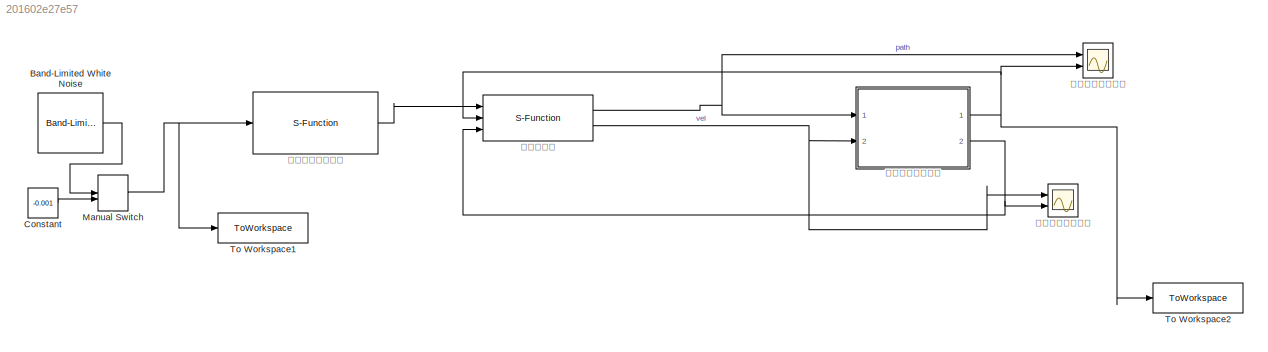
MODEL slx_201602e27e57
KIND model
CONFIG AbsTol = auto
CONFIG EnableMultiTasking = off
CONFIG FixedStep = 1/6e4
CONFIG MaxStep = auto
CONFIG MinStep = auto
CONFIG RelTol = 1e-3
CONFIG SampleTimeConstraint = Unconstrained
CONFIG Solver = ode8
CONFIG SolverName = ode8
CONFIG StartTime = 0.0
CONFIG StopTime = 0.101
BLOCK [Reference] Band-Limited White Noise  REF=simulink/Sources/Band-Limited
White Noise
  Ports = [0, 1]
  SourceBlock = simulink/Sources/Band-Limited\nWhite Noise
  SourceProductBaseCode = SL
  SourceProductName = Simulink
  SourceType = Band-Limited White Noise.
BLOCK [Constant] Constant
  Value = -0.001
BLOCK [ManualSwitch] Manual Switch
  CurrentSetting = 0
BLOCK [ToWorkspace] To Workspace1
  FixptAsFi = on
  MaxDataPoints = inf
  Ports = [1]
  SampleTime = 1/300
  Save2DSignal = 2-D array (concatenate along first dimension)
  VariableName = input
BLOCK [ToWorkspace] To Workspace2
  FixptAsFi = on
  MaxDataPoints = inf
  Ports = [1]
  SampleTime = 1/300
  Save2DSignal = 2-D array (concatenate along first dimension)
  VariableName = output
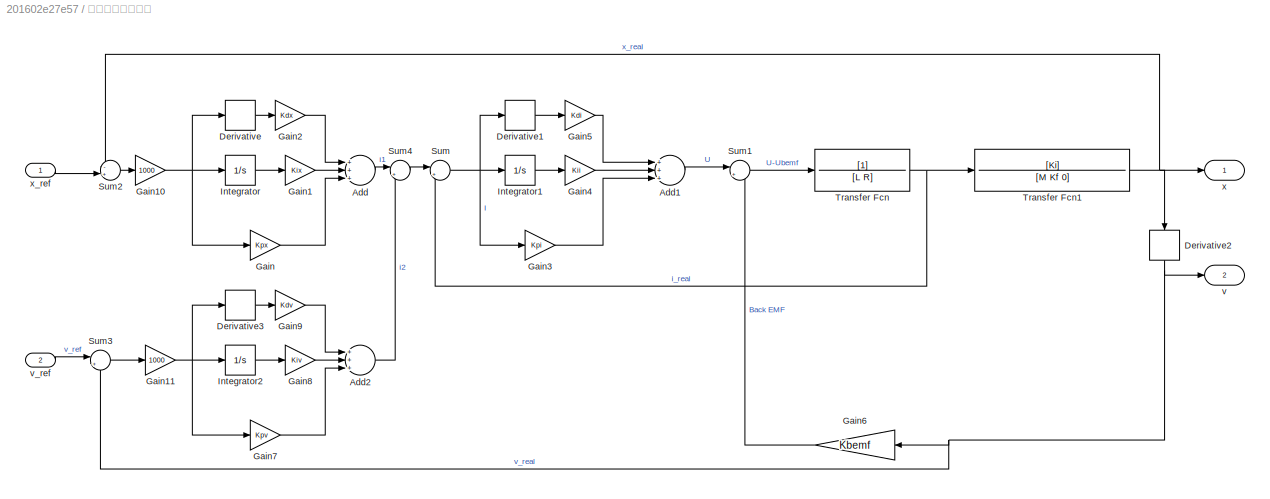
BLOCK [SubSystem] 直线电机简化模型
  Ports = [2, 2]
  RequestExecContextInheritance = off
BLOCK [Sum] 直线电机简化模型/Add
  InputSameDT = off
  Inputs = +++
  OutDataTypeStr = Inherit: Inherit via internal rule
  Ports = [3, 1]
  SaturateOnIntegerOverflow = off
BLOCK [Sum] 直线电机简化模型/Add1
  InputSameDT = off
  Inputs = +++
  OutDataTypeStr = Inherit: Inherit via internal rule
  Ports = [3, 1]
  SaturateOnIntegerOverflow = off
BLOCK [Sum] 直线电机简化模型/Add2
  InputSameDT = off
  Inputs = +++
  OutDataTypeStr = Inherit: Inherit via internal rule
  Ports = [3, 1]
  SaturateOnIntegerOverflow = off
BLOCK [Derivative] 直线电机简化模型/Derivative
BLOCK [Derivative] 直线电机简化模型/Derivative1
BLOCK [Derivative] 直线电机简化模型/Derivative2
BLOCK [Derivative] 直线电机简化模型/Derivative3
BLOCK [Gain] 直线电机简化模型/Gain
  Gain = Kpx
  OutDataTypeStr = Inherit: Inherit via internal rule
  ParamDataTypeStr = Inherit: Inherit via internal rule
  SaturateOnIntegerOverflow = off
BLOCK [Gain] 直线电机简化模型/Gain1
  Gain = Kix
  OutDataTypeStr = Inherit: Inherit via internal rule
  ParamDataTypeStr = Inherit: Inherit via internal rule
  SaturateOnIntegerOverflow = off
BLOCK [Gain] 直线电机简化模型/Gain10
  Gain = 1000
  OutDataTypeStr = Inherit: Inherit via internal rule
  ParamDataTypeStr = Inherit: Inherit via internal rule
  SaturateOnIntegerOverflow = off
BLOCK [Gain] 直线电机简化模型/Gain11
  Gain = 1000
  OutDataTypeStr = Inherit: Inherit via internal rule
  ParamDataTypeStr = Inherit: Inherit via internal rule
  SaturateOnIntegerOverflow = off
BLOCK [Gain] 直线电机简化模型/Gain2
  Gain = Kdx
  OutDataTypeStr = Inherit: Inherit via internal rule
  ParamDataTypeStr = Inherit: Inherit via internal rule
  SaturateOnIntegerOverflow = off
BLOCK [Gain] 直线电机简化模型/Gain3
  Gain = Kpi
  OutDataTypeStr = Inherit: Inherit via internal rule
  ParamDataTypeStr = Inherit: Inherit via internal rule
  SaturateOnIntegerOverflow = off
BLOCK [Gain] 直线电机简化模型/Gain4
  Gain = Kii
  OutDataTypeStr = Inherit: Inherit via internal rule
  ParamDataTypeStr = Inherit: Inherit via internal rule
  SaturateOnIntegerOverflow = off
BLOCK [Gain] 直线电机简化模型/Gain5
  Gain = Kdi
  OutDataTypeStr = Inherit: Inherit via internal rule
  ParamDataTypeStr = Inherit: Inherit via internal rule
  SaturateOnIntegerOverflow = off
BLOCK [Gain] 直线电机简化模型/Gain6
  Gain = Kbemf
  OutDataTypeStr = Inherit: Inherit via internal rule
  ParamDataTypeStr = Inherit: Inherit via internal rule
  SaturateOnIntegerOverflow = off
BLOCK [Gain] 直线电机简化模型/Gain7
  Gain = Kpv
  OutDataTypeStr = Inherit: Inherit via internal rule
  ParamDataTypeStr = Inherit: Inherit via internal rule
  SaturateOnIntegerOverflow = off
BLOCK [Gain] 直线电机简化模型/Gain8
  Gain = Kiv
  OutDataTypeStr = Inherit: Inherit via internal rule
  ParamDataTypeStr = Inherit: Inherit via internal rule
  SaturateOnIntegerOverflow = off
BLOCK [Gain] 直线电机简化模型/Gain9
  Gain = Kdv
  OutDataTypeStr = Inherit: Inherit via internal rule
  ParamDataTypeStr = Inherit: Inherit via internal rule
  SaturateOnIntegerOverflow = off
BLOCK [Integrator] 直线电机简化模型/Integrator
  Ports = [1, 1]
BLOCK [Integrator] 直线电机简化模型/Integrator1
  Ports = [1, 1]
BLOCK [Integrator] 直线电机简化模型/Integrator2
  Ports = [1, 1]
BLOCK [Sum] 直线电机简化模型/Sum
  IconShape = round
  InputSameDT = off
  Inputs = |+-
  OutDataTypeStr = Inherit: Inherit via internal rule
  Ports = [2, 1]
  SaturateOnIntegerOverflow = off
BLOCK [Sum] 直线电机简化模型/Sum1
  IconShape = round
  InputSameDT = off
  Inputs = |+-
  OutDataTypeStr = Inherit: Inherit via internal rule
  Ports = [2, 1]
  SaturateOnIntegerOverflow = off
BLOCK [Sum] 直线电机简化模型/Sum2
  IconShape = round
  InputSameDT = off
  Inputs = -+|
  OutDataTypeStr = Inherit: Inherit via internal rule
  Ports = [2, 1]
  SaturateOnIntegerOverflow = off
BLOCK [Sum] 直线电机简化模型/Sum3
  IconShape = round
  InputSameDT = off
  Inputs = |+-
  OutDataTypeStr = Inherit: Inherit via internal rule
  Ports = [2, 1]
  SaturateOnIntegerOverflow = off
BLOCK [Sum] 直线电机简化模型/Sum4
  IconShape = round
  InputSameDT = off
  Inputs = |++
  OutDataTypeStr = Inherit: Inherit via internal rule
  Ports = [2, 1]
  SaturateOnIntegerOverflow = off
BLOCK [TransferFcn] 直线电机简化模型/Transfer Fcn
  Denominator = [L R]
BLOCK [TransferFcn] 直线电机简化模型/Transfer Fcn1
  Denominator = [M Kf 0]
  Numerator = [Ki]
BLOCK [Outport] 直线电机简化模型/v
  IconDisplay = Port number
  Port = 2
BLOCK [Inport] 直线电机简化模型/v_ref
  IconDisplay = Port number
  Port = 2
BLOCK [Outport] 直线电机简化模型/x
  IconDisplay = Port number
BLOCK [Inport] 直线电机简化模型/x_ref
  IconDisplay = Port number
BLOCK [S-Function] 相对位移命令生成
  EnableBusSupport = off
  FunctionName = CommandGenerator
  Parameters = ts0,cp0
  Ports = [1, 1]
  SFcnIsStateOwnerBlock = off
  SFunctionDeploymentMode = off
BLOCK [Scope] 观察位移跟踪情况
  Floating = off
  NumInputPorts = 2
  Ports = [2]
  ScopeSpecificationString = Simulink.scopes.TimeScopeBlockCfg('CurrentConfiguration', extmgr.ConfigurationSet(extmgr.Configuration('Core','General UI',true),extmgr.Configuration('Core','Source UI',true),extmgr.Configuration('Sources','WiredSimulink',true),extmgr.Configuration('Visuals','Time Domain',true,'SerializedDisplays',{struct('MinYLimReal','-0.00862','MaxYLimReal','0.00289','YLabelReal','','MinYLimMag','0.00000','MaxY...<+1420ch>
BLOCK [Scope] 观察速度跟踪情况
  Commented = on
  Floating = off
  NumInputPorts = 2
  Ports = [2]
  ScopeSpecificationString = Simulink.scopes.TimeScopeBlockCfg('CurrentConfiguration', extmgr.ConfigurationSet(extmgr.Configuration('Core','General UI',true),extmgr.Configuration('Core','Source UI',true),extmgr.Configuration('Sources','WiredSimulink',true,'DataLoggingVariableName','ScopeData1'),extmgr.Configuration('Visuals','Time Domain',true,'SerializedDisplays',{struct('MinYLimReal','-0.02588','MaxYLimReal','0.0406','YLabe...<+1457ch>
BLOCK [S-Function] 路径规划器
  EnableBusSupport = off
  FunctionName = ProfileGenerator
  Parameters = ts0,vmax0,amax0
  Ports = [3, 2]
  SFcnIsStateOwnerBlock = off
  SFunctionDeploymentMode = off
LINE Band-Limited White Noise:1 -> Manual Switch:1
LINE Constant:1 -> Manual Switch:2
NET Manual Switch:1 -> To Workspace1:1, 相对位移命令生成:1
LINE 直线电机简化模型/Add1:1 -> 直线电机简化模型/Sum1:1
LINE 直线电机简化模型/Add2:1 -> 直线电机简化模型/Sum4:2
LINE 直线电机简化模型/Add:1 -> 直线电机简化模型/Sum4:1
LINE 直线电机简化模型/Derivative1:1 -> 直线电机简化模型/Gain5:1
NET 直线电机简化模型/Derivative2:1 -> 直线电机简化模型/Gain6:1, 直线电机简化模型/Sum3:2, 直线电机简化模型/v:1
LINE 直线电机简化模型/Derivative3:1 -> 直线电机简化模型/Gain9:1
LINE 直线电机简化模型/Derivative:1 -> 直线电机简化模型/Gain2:1
NET 直线电机简化模型/Gain10:1 -> 直线电机简化模型/Derivative:1, 直线电机简化模型/Gain:1, 直线电机简化模型/Integrator:1
NET 直线电机简化模型/Gain11:1 -> 直线电机简化模型/Derivative3:1, 直线电机简化模型/Gain7:1, 直线电机简化模型/Integrator2:1
LINE 直线电机简化模型/Gain1:1 -> 直线电机简化模型/Add:2
LINE 直线电机简化模型/Gain2:1 -> 直线电机简化模型/Add:1
LINE 直线电机简化模型/Gain3:1 -> 直线电机简化模型/Add1:3
LINE 直线电机简化模型/Gain4:1 -> 直线电机简化模型/Add1:2
LINE 直线电机简化模型/Gain5:1 -> 直线电机简化模型/Add1:1
LINE 直线电机简化模型/Gain6:1 -> 直线电机简化模型/Sum1:2
LINE 直线电机简化模型/Gain7:1 -> 直线电机简化模型/Add2:3
LINE 直线电机简化模型/Gain8:1 -> 直线电机简化模型/Add2:2
LINE 直线电机简化模型/Gain9:1 -> 直线电机简化模型/Add2:1
LINE 直线电机简化模型/Gain:1 -> 直线电机简化模型/Add:3
LINE 直线电机简化模型/Integrator1:1 -> 直线电机简化模型/Gain4:1
LINE 直线电机简化模型/Integrator2:1 -> 直线电机简化模型/Gain8:1
LINE 直线电机简化模型/Integrator:1 -> 直线电机简化模型/Gain1:1
LINE 直线电机简化模型/Sum1:1 -> 直线电机简化模型/Transfer Fcn:1
LINE 直线电机简化模型/Sum2:1 -> 直线电机简化模型/Gain10:1
LINE 直线电机简化模型/Sum3:1 -> 直线电机简化模型/Gain11:1
LINE 直线电机简化模型/Sum4:1 -> 直线电机简化模型/Sum:1
NET 直线电机简化模型/Sum:1 -> 直线电机简化模型/Derivative1:1, 直线电机简化模型/Gain3:1, 直线电机简化模型/Integrator1:1
NET 直线电机简化模型/Transfer Fcn1:1 -> 直线电机简化模型/Derivative2:1, 直线电机简化模型/Sum2:1, 直线电机简化模型/x:1
NET 直线电机简化模型/Transfer Fcn:1 -> 直线电机简化模型/Sum:2, 直线电机简化模型/Transfer Fcn1:1
LINE 直线电机简化模型/v_ref:1 -> 直线电机简化模型/Sum3:1
LINE 直线电机简化模型/x_ref:1 -> 直线电机简化模型/Sum2:2
NET 直线电机简化模型:1 -> To Workspace2:1, 观察位移跟踪情况:2, 路径规划器:2
NET 直线电机简化模型:2 -> 观察速度跟踪情况:2, 路径规划器:3
LINE 相对位移命令生成:1 -> 路径规划器:1
NET 路径规划器:1 -> 直线电机简化模型:1, 观察位移跟踪情况:1
NET 路径规划器:2 -> 直线电机简化模型:2, 观察速度跟踪情况:1
note: NET lines group one-source signal fan-out (src -> all destinations, sorted); 1:1 wires keep LINE
